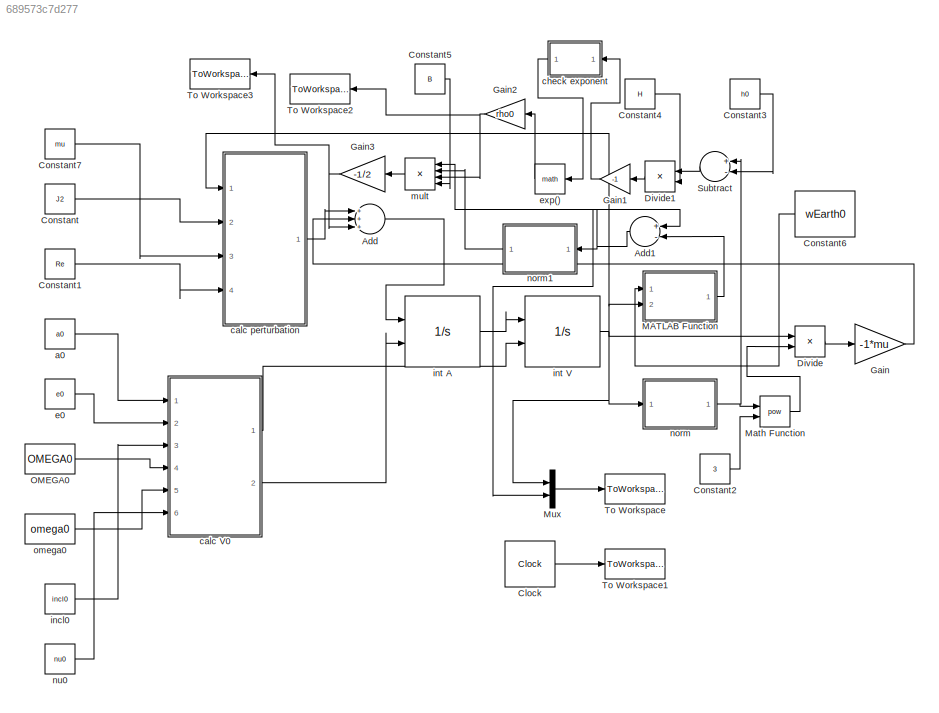
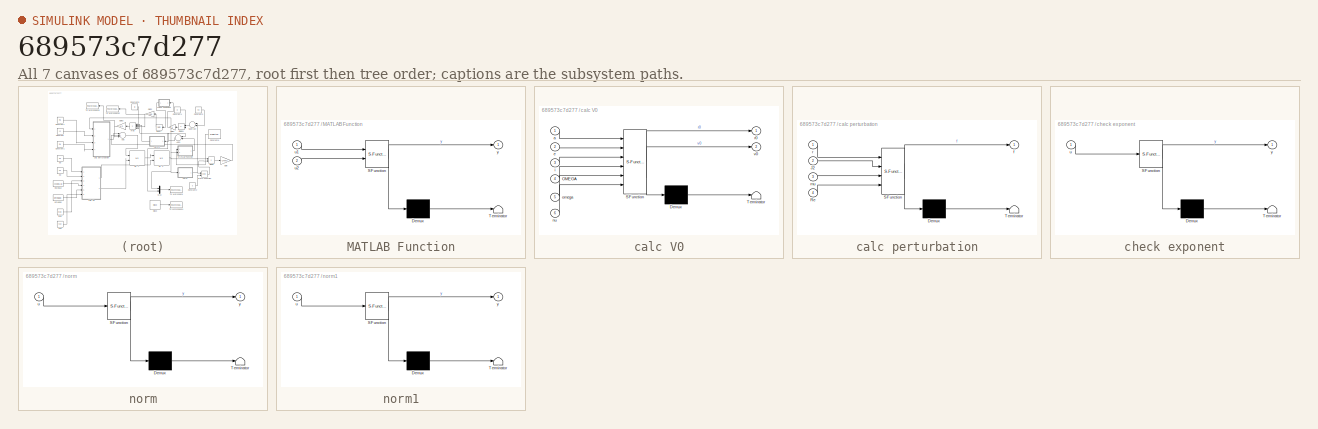
[diagram: thumbnail index - all 7 canvases of the model, root first then tree order]
MODEL slx_689573c7d277
KIND model
CONFIG AbsTol = 1e-9
CONFIG FixedStep = auto
CONFIG MaxStep = 1*60
CONFIG MinStep = auto
CONFIG RelTol = 1e-6
CONFIG SampleTimeConstraint = Unconstrained
CONFIG Solver = ode113
CONFIG SolverMode = Auto
CONFIG SolverName = ode113
CONFIG StartTime = 0.0
CONFIG StopTime = numDaysSim*24*3600
BLOCK [Sum] Add
  InputSameDT = off
  Inputs = +++
  OutDataTypeStr = Inherit: Inherit via internal rule
  Ports = [3, 1]
  SaturateOnIntegerOverflow = off
BLOCK [Sum] Add1
  InputSameDT = off
  Inputs = +-
  OutDataTypeStr = Inherit: Inherit via internal rule
  Ports = [2, 1]
  SaturateOnIntegerOverflow = off
BLOCK [Clock] Clock
BLOCK [Constant] Constant
  Value = J2
BLOCK [Constant] Constant1
  Value = Re
BLOCK [Constant] Constant2
  Value = 3
BLOCK [Constant] Constant3
  Value = h0
BLOCK [Constant] Constant4
  Value = H
BLOCK [Constant] Constant5
  Value = B
BLOCK [Constant] Constant6
  Value = wEarth0
BLOCK [Constant] Constant7
  Value = mu
BLOCK [Product] Divide
  InputSameDT = off
  Inputs = */
  OutDataTypeStr = Inherit: Inherit via internal rule
  Ports = [2, 1]
  RndMeth = Floor
  SaturateOnIntegerOverflow = off
BLOCK [Product] Divide1
  InputSameDT = off
  Inputs = */
  OutDataTypeStr = Inherit: Inherit via internal rule
  Ports = [2, 1]
  RndMeth = Floor
  SaturateOnIntegerOverflow = off
BLOCK [Gain] Gain
  Gain = -1*mu
  OutDataTypeStr = Inherit: Inherit via internal rule
  ParamDataTypeStr = Inherit: Inherit via internal rule
  SaturateOnIntegerOverflow = off
BLOCK [Gain] Gain1
  Gain = -1
  OutDataTypeStr = Inherit: Inherit via internal rule
  ParamDataTypeStr = Inherit: Inherit via internal rule
  SaturateOnIntegerOverflow = off
BLOCK [Gain] Gain2
  Gain = rho0
  OutDataTypeStr = Inherit: Inherit via internal rule
  ParamDataTypeStr = Inherit: Inherit via internal rule
  SaturateOnIntegerOverflow = off
BLOCK [Gain] Gain3
  Gain = -1/2
  OutDataTypeStr = Inherit: Inherit via internal rule
  ParamDataTypeStr = Inherit: Inherit via internal rule
  SaturateOnIntegerOverflow = off
BLOCK [SubSystem] MATLAB Function
  ErrorFcn = Stateflow.Translate.translate
  PermitHierarchicalResolution = ExplicitOnly
  Ports = [2, 1]
  RequestExecContextInheritance = off
  SFBlockType = MATLAB Function
  TreatAsAtomicUnit = on
BLOCK [Demux] MATLAB Function/ Demux 
  Outputs = 1
  Ports = [1, 1]
BLOCK [S-Function] MATLAB Function/ SFunction 
  EnableBusSupport = on
  FunctionName = sf_sfun
  PortCounts = [2 2]
  Ports = [2, 2]
  Tag = Stateflow S-Function orbitSIM 5
BLOCK [Terminator] MATLAB Function/ Terminator 
BLOCK [Inport] MATLAB Function/u1
  IconDisplay = Port number
BLOCK [Inport] MATLAB Function/u2
  IconDisplay = Port number
  Port = 2
BLOCK [Outport] MATLAB Function/y
  IconDisplay = Port number
BLOCK [Math] Math Function
  Operator = pow
  Ports = [2, 1]
BLOCK [Mux] Mux
  DisplayOption = bar
  Inputs = 2
  Ports = [2, 1]
BLOCK [Constant] OMEGA0
  Value = OMEGA0
BLOCK [Sum] Subtract
  InputSameDT = off
  Inputs = +-
  OutDataTypeStr = Inherit: Inherit via internal rule
  Ports = [2, 1]
  SaturateOnIntegerOverflow = off
BLOCK [ToWorkspace] To Workspace
  FixptAsFi = on
  MaxDataPoints = inf
  Ports = [1]
  SampleTime = -1
  Save2DSignal = 3-D array (concatenate along third dimension)
  VariableName = Xout
BLOCK [ToWorkspace] To Workspace1
  FixptAsFi = on
  MaxDataPoints = inf
  Ports = [1]
  SampleTime = -1
  Save2DSignal = 3-D array (concatenate along third dimension)
  VariableName = tout
BLOCK [ToWorkspace] To Workspace2
  FixptAsFi = on
  MaxDataPoints = inf
  Ports = [1]
  SampleTime = -1
  Save2DSignal = 3-D array (concatenate along third dimension)
  VariableName = rho
BLOCK [ToWorkspace] To Workspace3
  FixptAsFi = on
  MaxDataPoints = inf
  Ports = [1]
  SampleTime = -1
  Save2DSignal = 3-D array (concatenate along third dimension)
  VariableName = fDrag
BLOCK [Constant] a0
  Value = a0
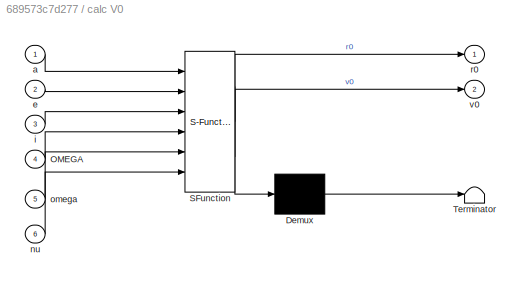
BLOCK [SubSystem] calc V0
  ErrorFcn = Stateflow.Translate.translate
  PermitHierarchicalResolution = ExplicitOnly
  Ports = [6, 2]
  RequestExecContextInheritance = off
  SFBlockType = MATLAB Function
  TreatAsAtomicUnit = on
BLOCK [Demux] calc V0/ Demux 
  Outputs = 1
  Ports = [1, 1]
BLOCK [S-Function] calc V0/ SFunction 
  EnableBusSupport = on
  FunctionName = sf_sfun
  PortCounts = [6 3]
  Ports = [6, 3]
  Tag = Stateflow S-Function orbitSIM 3
BLOCK [Terminator] calc V0/ Terminator 
BLOCK [Inport] calc V0/OMEGA
  IconDisplay = Port number
  Port = 4
BLOCK [Inport] calc V0/a
  IconDisplay = Port number
BLOCK [Inport] calc V0/e
  IconDisplay = Port number
  Port = 2
BLOCK [Inport] calc V0/i
  IconDisplay = Port number
  Port = 3
BLOCK [Inport] calc V0/nu
  IconDisplay = Port number
  Port = 6
BLOCK [Inport] calc V0/omega
  IconDisplay = Port number
  Port = 5
BLOCK [Outport] calc V0/r0
  IconDisplay = Port number
BLOCK [Outport] calc V0/v0
  IconDisplay = Port number
  Port = 2
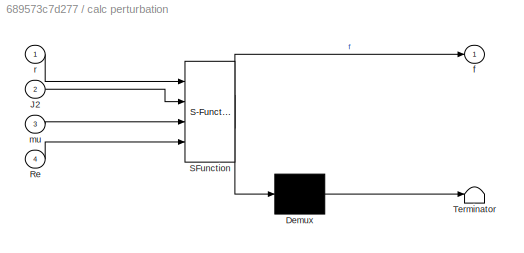
BLOCK [SubSystem] calc perturbation
  ErrorFcn = Stateflow.Translate.translate
  PermitHierarchicalResolution = ExplicitOnly
  Ports = [4, 1]
  RequestExecContextInheritance = off
  SFBlockType = MATLAB Function
  TreatAsAtomicUnit = on
BLOCK [Demux] calc perturbation/ Demux 
  Outputs = 1
  Ports = [1, 1]
BLOCK [S-Function] calc perturbation/ SFunction 
  EnableBusSupport = on
  FunctionName = sf_sfun
  PortCounts = [4 2]
  Ports = [4, 2]
  Tag = Stateflow S-Function orbitSIM 2
BLOCK [Terminator] calc perturbation/ Terminator 
BLOCK [Inport] calc perturbation/J2
  IconDisplay = Port number
  Port = 2
BLOCK [Inport] calc perturbation/Re
  IconDisplay = Port number
  Port = 4
BLOCK [Outport] calc perturbation/f
  IconDisplay = Port number
BLOCK [Inport] calc perturbation/mu
  IconDisplay = Port number
  Port = 3
BLOCK [Inport] calc perturbation/r
  IconDisplay = Port number
BLOCK [SubSystem] check exponent
  ErrorFcn = Stateflow.Translate.translate
  PermitHierarchicalResolution = ExplicitOnly
  Ports = [1, 1]
  RequestExecContextInheritance = off
  SFBlockType = MATLAB Function
  TreatAsAtomicUnit = on
BLOCK [Demux] check exponent/ Demux 
  Outputs = 1
  Ports = [1, 1]
BLOCK [S-Function] check exponent/ SFunction 
  EnableBusSupport = on
  FunctionName = sf_sfun
  PortCounts = [1 2]
  Ports = [1, 2]
  Tag = Stateflow S-Function orbitSIM 6
BLOCK [Terminator] check exponent/ Terminator 
BLOCK [Inport] check exponent/u
  IconDisplay = Port number
BLOCK [Outport] check exponent/y
  IconDisplay = Port number
BLOCK [Constant] e0
  Value = e0
BLOCK [Math] exp()
  Ports = [1, 1]
BLOCK [Constant] incl0
  Value = incl0
BLOCK [Integrator] int A
  InitialConditionSource = external
  Ports = [2, 1]
BLOCK [Integrator] int V
  InitialConditionSource = external
  Ports = [2, 1]
BLOCK [Product] mult
  InputSameDT = off
  Inputs = ****
  OutDataTypeStr = Inherit: Inherit via internal rule
  Ports = [4, 1]
  RndMeth = Floor
  SaturateOnIntegerOverflow = off
BLOCK [SubSystem] norm
  ErrorFcn = Stateflow.Translate.translate
  PermitHierarchicalResolution = ExplicitOnly
  Ports = [1, 1]
  RequestExecContextInheritance = off
  SFBlockType = MATLAB Function
  TreatAsAtomicUnit = on
BLOCK [Demux] norm/ Demux 
  Outputs = 1
  Ports = [1, 1]
BLOCK [S-Function] norm/ SFunction 
  EnableBusSupport = on
  FunctionName = sf_sfun
  PortCounts = [1 2]
  Ports = [1, 2]
  Tag = Stateflow S-Function orbitSIM 1
BLOCK [Terminator] norm/ Terminator 
BLOCK [Inport] norm/u
  IconDisplay = Port number
BLOCK [Outport] norm/y
  IconDisplay = Port number
BLOCK [SubSystem] norm1
  ErrorFcn = Stateflow.Translate.translate
  PermitHierarchicalResolution = ExplicitOnly
  Ports = [1, 1]
  RequestExecContextInheritance = off
  SFBlockType = MATLAB Function
  TreatAsAtomicUnit = on
BLOCK [Demux] norm1/ Demux 
  Outputs = 1
  Ports = [1, 1]
BLOCK [S-Function] norm1/ SFunction 
  EnableBusSupport = on
  FunctionName = sf_sfun
  PortCounts = [1 2]
  Ports = [1, 2]
  Tag = Stateflow S-Function orbitSIM 4
BLOCK [Terminator] norm1/ Terminator 
BLOCK [Inport] norm1/u
  IconDisplay = Port number
BLOCK [Outport] norm1/y
  IconDisplay = Port number
BLOCK [Constant] nu0
  Value = nu0
BLOCK [Constant] omega0
  Value = omega0
NET Add1:1 -> mult:1, norm1:1
LINE Add:1 -> int A:1
LINE Clock:1 -> To Workspace1:1
LINE Constant1:1 -> calc perturbation:4
LINE Constant2:1 -> Math Function:2
LINE Constant3:1 -> Subtract:2
LINE Constant4:1 -> Divide1:2
LINE Constant5:1 -> mult:4
LINE Constant6:1 -> MATLAB Function:1
LINE Constant7:1 -> calc perturbation:3
LINE Constant:1 -> calc perturbation:2
LINE Divide1:1 -> Gain1:1
LINE Divide:1 -> Gain:1
LINE Gain1:1 -> check exponent:1
NET Gain2:1 -> To Workspace2:1, mult:3
NET Gain3:1 -> Add:3, To Workspace3:1
LINE Gain:1 -> Add:2
LINE MATLAB Function:1 -> Add1:2
LINE Math Function:1 -> Divide:2
LINE Mux:1 -> To Workspace:1
LINE OMEGA0:1 -> calc V0:4
LINE Subtract:1 -> Divide1:1
LINE a0:1 -> calc V0:1
LINE calc V0:1 -> int V:2
LINE calc V0:2 -> int A:2
LINE calc perturbation:1 -> Add:1
LINE check exponent:1 -> exp():1
LINE e0:1 -> calc V0:2
LINE exp():1 -> Gain2:1
LINE incl0:1 -> calc V0:3
NET int A:1 -> Add1:1, Mux:2, int V:1
NET int V:1 -> Divide:1, MATLAB Function:2, Mux:1, calc perturbation:1, norm:1
LINE mult:1 -> Gain3:1
LINE norm1:1 -> mult:2
NET norm:1 -> Math Function:1, Subtract:1
LINE nu0:1 -> calc V0:6
LINE omega0:1 -> calc V0:5
note: NET lines group one-source signal fan-out (src -> all destinations, sorted); 1:1 wires keep LINE
CHART norm states=1 transitions=1
  STATE_LABEL 'eML_blk_kernel()'
  STATE_LABEL 'SCRIPT:\nfunction y = fcn(u)\n%#codegen\n\ny = norm(u);'
CHART calc perturbation states=1 transitions=1
  STATE_LABEL 'eML_blk_kernel()'
  STATE_LABEL "SCRIPT:\nfunction f = fcn(r, J2, mu, Re)\n% NOTE! EVERYTHING IN DEGREES\n% \n% fR = -3*mu*J2*Re^2/(2*r^4)*(1-3*sind(incl)^2*sind(u)^2);\n% fT = -3*mu*J2*Re^2/(2*r^4)*(sind(incl)^2*sind(u)*cosd(u));\n% fN = -3*mu*J2*Re^2/(2*r^4)*(sind(incl)*cosd(incl)*sind(u));\nrMag = norm(r);\nrDir = r ./ norm(r);\nf = -mu*J2*Re^2/2*( [0, 0, 6*r(3)/rMag^5]' + ...\n      (3/rMag^4 - 15*(r(3)^2/rMag^6)).*rDir);\n\nend"
CHART calc V0 states=1 transitions=1
  STATE_LABEL 'eML_blk_kernel()'
  STATE_LABEL 'SCRIPT:\nfunction [r0, v0] = fcn(a, e, i, OMEGA, omega, nu)\n%#codegen\n[r0, v0] = OE2XV(a, e, i, OMEGA, omega, nu);\nend'
CHART norm1 states=1 transitions=1
  STATE_LABEL 'eML_blk_kernel()'
  STATE_LABEL 'SCRIPT:\nfunction y = fcn(u)\n%#codegen\n\ny = norm(u);'
CHART MATLAB Function states=1 transitions=1
  STATE_LABEL 'eML_blk_kernel()'
  STATE_LABEL 'SCRIPT:\nfunction y = fcn(u1,u2)\n%#codegen\n\ny = cross(u1,u2);'
CHART check exponent states=1 transitions=1
  STATE_LABEL 'eML_blk_kernel()'
  STATE_LABEL 'SCRIPT:\nfunction y = fcn(u)\n%#codegen\nif u>0\n  y = 0;\nelse\n  y = u;\nend'
